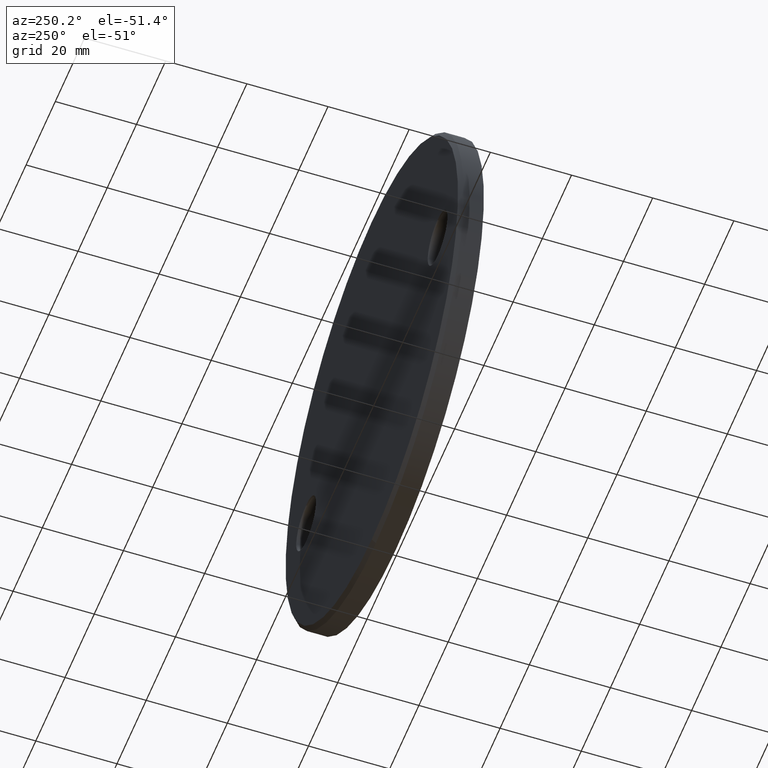
[diagram: clean part render]
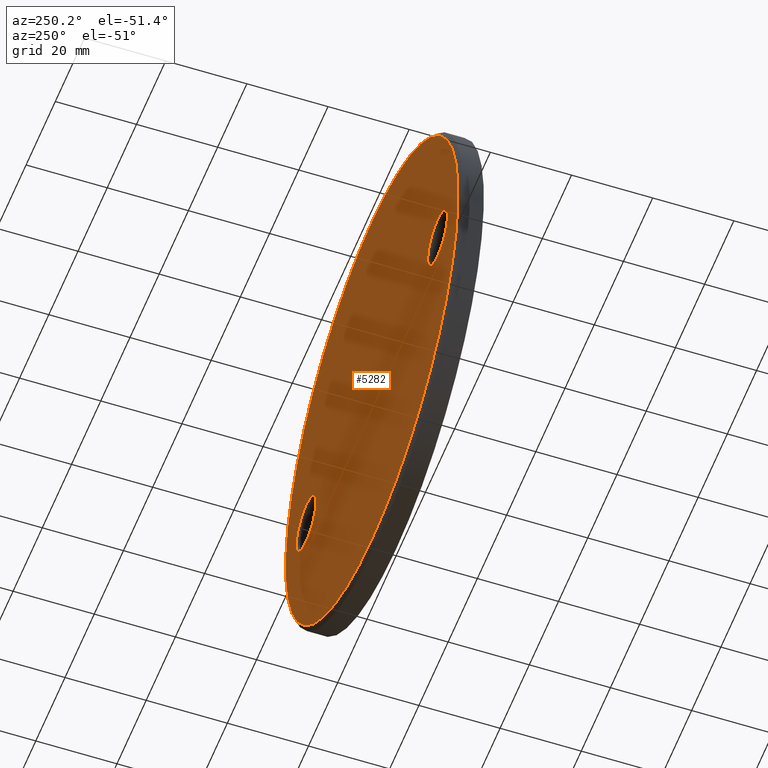
[diagram: same view with one face highlighted and labeled with its STEP entity id]
A machine part, auxiliary view. The second image highlights one B-rep face of the part: STEP entity #5282.
In plain terms, the highlighted planar face has unit normal (0, 1, 0).
Its self-contained STEP definition (entity closure, byte-faithful):
#205 = CARTESIAN_POINT ( 'NONE',  ( -45.00000000000000000, 6.000000000000000000, -6.750000000000033751 ) ) ;
#352 = PLANE ( 'NONE',  #8435 ) ;
#358 = CIRCLE ( 'NONE', #9063, 6.750000000000033751 ) ;
#483 = CARTESIAN_POINT ( 'NONE',  ( 0.000000000000000000, 6.000000000000000000, 0.000000000000000000 ) ) ;
#513 = AXIS2_PLACEMENT_3D ( 'NONE', #9260, #10315, #6996 ) ;
#557 = CIRCLE ( 'NONE', #513, 58.99999999999998579 ) ;
#835 = EDGE_CURVE ( 'NONE', #5642, #5566, #358, .T. ) ;
#883 = DIRECTION ( 'NONE',  ( 0.000000000000000000, 0.000000000000000000, 1.000000000000000000 ) ) ;
#1060 = DIRECTION ( 'NONE',  ( 0.000000000000000000, 0.000000000000000000, 1.000000000000000000 ) ) ;
#1674 = DIRECTION ( 'NONE',  ( -0.000000000000000000, -1.000000000000000000, -0.000000000000000000 ) ) ;
#1915 = DIRECTION ( 'NONE',  ( -0.000000000000000000, -1.000000000000000000, -0.000000000000000000 ) ) ;
#1943 = CARTESIAN_POINT ( 'NONE',  ( 0.000000000000000000, 6.000000000000000000, 0.000000000000000000 ) ) ;
#2150 = VERTEX_POINT ( 'NONE', #11498 ) ;
#2194 = CIRCLE ( 'NONE', #3450, 6.750000000000033751 ) ;
#2302 = AXIS2_PLACEMENT_3D ( 'NONE', #11641, #10569, #1060 ) ;
#2313 = CARTESIAN_POINT ( 'NONE',  ( 45.00000000000000000, 6.000000000000000000, -6.750000000000045297 ) ) ;
#2984 = DIRECTION ( 'NONE',  ( 0.000000000000000000, 0.000000000000000000, 1.000000000000000000 ) ) ;
#3325 = CARTESIAN_POINT ( 'NONE',  ( -45.00000000000000000, 6.000000000000000000, 6.750000000000033751 ) ) ;
#3450 = AXIS2_PLACEMENT_3D ( 'NONE', #7210, #1915, #2984 ) ;
#3601 = CIRCLE ( 'NONE', #2302, 6.750000000000033751 ) ;
#3680 = FACE_BOUND ( 'NONE', #9389, .T. ) ;
#4113 = DIRECTION ( 'NONE',  ( -0.000000000000000000, -1.000000000000000000, -0.000000000000000000 ) ) ;
#4164 = CIRCLE ( 'NONE', #12654, 6.750000000000033751 ) ;
#4175 = VERTEX_POINT ( 'NONE', #13538 ) ;
#4304 = DIRECTION ( 'NONE',  ( 0.000000000000000000, 1.000000000000000000, 0.000000000000000000 ) ) ;
#4738 = DIRECTION ( 'NONE',  ( 0.000000000000000000, 1.000000000000000000, 0.000000000000000000 ) ) ;
#4774 = ORIENTED_EDGE ( 'NONE', *, *, #5654, .T. ) ;
#5095 = DIRECTION ( 'NONE',  ( 0.000000000000000000, 0.000000000000000000, 1.000000000000000000 ) ) ;
#5282 = ADVANCED_FACE ( 'NONE', ( #6830, #3680, #7321 ), #352, .T. ) ;
#5471 = EDGE_CURVE ( 'NONE', #9131, #4175, #2194, .T. ) ;
#5566 = VERTEX_POINT ( 'NONE', #3325 ) ;
#5642 = VERTEX_POINT ( 'NONE', #205 ) ;
#5654 = EDGE_CURVE ( 'NONE', #12027, #2150, #11176, .T. ) ;
#6214 = AXIS2_PLACEMENT_3D ( 'NONE', #1943, #4304, #7280 ) ;
#6535 = ORIENTED_EDGE ( 'NONE', *, *, #12555, .T. ) ;
#6822 = EDGE_LOOP ( 'NONE', ( #10148, #10945 ) ) ;
#6830 = FACE_OUTER_BOUND ( 'NONE', #11484, .T. ) ;
#6996 = DIRECTION ( 'NONE',  ( 0.000000000000000000, 0.000000000000000000, 1.000000000000000000 ) ) ;
#7210 = CARTESIAN_POINT ( 'NONE',  ( 45.00000000000000000, 6.000000000000000000, -1.102182119232617911E-14 ) ) ;
#7280 = DIRECTION ( 'NONE',  ( 0.000000000000000000, 0.000000000000000000, 1.000000000000000000 ) ) ;
#7321 = FACE_BOUND ( 'NONE', #6822, .T. ) ;
#7506 = EDGE_CURVE ( 'NONE', #4175, #9131, #4164, .T. ) ;
#7911 = DIRECTION ( 'NONE',  ( 0.000000000000000000, -0.000000000000000000, 1.000000000000000000 ) ) ;
#8435 = AXIS2_PLACEMENT_3D ( 'NONE', #483, #4738, #7911 ) ;
#9063 = AXIS2_PLACEMENT_3D ( 'NONE', #9194, #1674, #5095 ) ;
#9131 = VERTEX_POINT ( 'NONE', #2313 ) ;
#9194 = CARTESIAN_POINT ( 'NONE',  ( -45.00000000000000000, 6.000000000000000000, 0.000000000000000000 ) ) ;
#9260 = CARTESIAN_POINT ( 'NONE',  ( 0.000000000000000000, 6.000000000000000000, 0.000000000000000000 ) ) ;
#9389 = EDGE_LOOP ( 'NONE', ( #13694, #13013 ) ) ;
#9582 = EDGE_CURVE ( 'NONE', #5566, #5642, #3601, .T. ) ;
#10148 = ORIENTED_EDGE ( 'NONE', *, *, #9582, .T. ) ;
#10315 = DIRECTION ( 'NONE',  ( 0.000000000000000000, 1.000000000000000000, 0.000000000000000000 ) ) ;
#10530 = CARTESIAN_POINT ( 'NONE',  ( 45.00000000000000000, 6.000000000000000000, -1.102182119232617911E-14 ) ) ;
#10569 = DIRECTION ( 'NONE',  ( -0.000000000000000000, -1.000000000000000000, -0.000000000000000000 ) ) ;
#10707 = CARTESIAN_POINT ( 'NONE',  ( 7.286648454926750781E-15, 6.000000000000000000, 58.99999999999998579 ) ) ;
#10945 = ORIENTED_EDGE ( 'NONE', *, *, #835, .T. ) ;
#11176 = CIRCLE ( 'NONE', #6214, 58.99999999999998579 ) ;
#11484 = EDGE_LOOP ( 'NONE', ( #6535, #4774 ) ) ;
#11498 = CARTESIAN_POINT ( 'NONE',  ( 0.000000000000000000, 6.000000000000000000, -58.99999999999998579 ) ) ;
#11641 = CARTESIAN_POINT ( 'NONE',  ( -45.00000000000000000, 6.000000000000000000, 0.000000000000000000 ) ) ;
#12027 = VERTEX_POINT ( 'NONE', #10707 ) ;
#12555 = EDGE_CURVE ( 'NONE', #2150, #12027, #557, .T. ) ;
#12654 = AXIS2_PLACEMENT_3D ( 'NONE', #10530, #4113, #883 ) ;
#13013 = ORIENTED_EDGE ( 'NONE', *, *, #5471, .T. ) ;
#13538 = CARTESIAN_POINT ( 'NONE',  ( 45.00000000000000000, 6.000000000000000000, 6.750000000000022204 ) ) ;
#13694 = ORIENTED_EDGE ( 'NONE', *, *, #7506, .T. ) ;